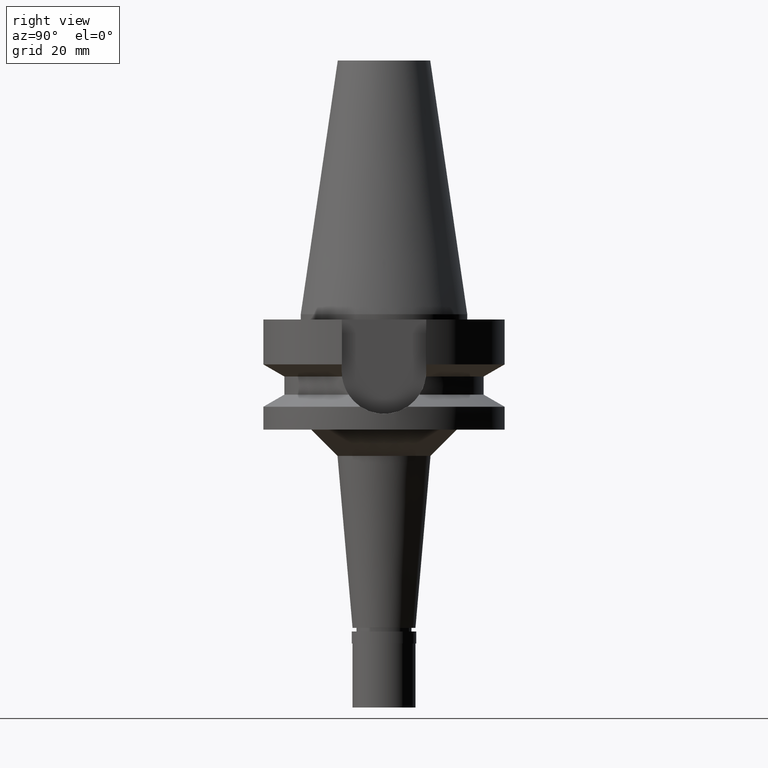
[diagram: clean part render]
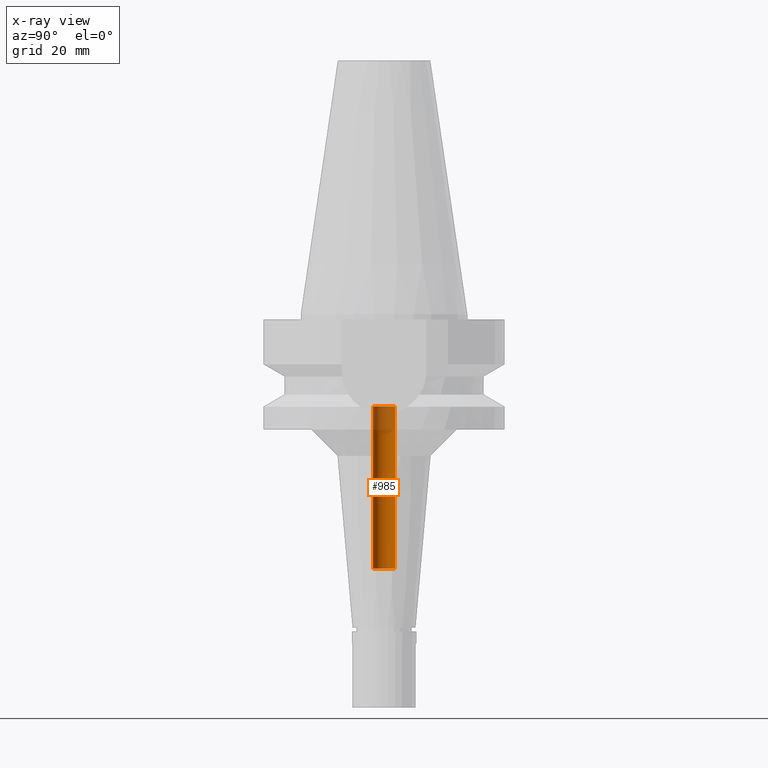
[diagram: x-ray — body ghosted, one internal face saturated and labeled with its STEP entity id]
A machine part, right view, then the same camera in x-ray: the body is ghosted and one INTERNAL B-rep face — a face not visible from any outside direction — is saturated and labeled: STEP entity #985.
In plain terms, the highlighted cylindrical surface (edge-blend (fillet) strip) has radius 2.1 mm, axis along (0, 0, -1).
Its self-contained STEP definition (entity closure, byte-faithful):
#82 = LINE ( 'NONE', #2056, #756 ) ;
#84 = DIRECTION ( 'NONE',  ( 0.0000000000000000000, 0.0000000000000000000, -1.000000000000000000 ) ) ;
#213 = VERTEX_POINT ( 'NONE', #2674 ) ;
#332 = DIRECTION ( 'NONE',  ( 0.0000000000000000000, -1.000000000000000000, 0.0000000000000000000 ) ) ;
#415 = ORIENTED_EDGE ( 'NONE', *, *, #477, .T. ) ;
#477 = EDGE_CURVE ( 'NONE', #2737, #694, #1153, .T. ) ;
#515 = CARTESIAN_POINT ( 'NONE',  ( 0.0000000000000000000, 2.100000000000000089, -17.60000000000000142 ) ) ;
#523 = DIRECTION ( 'NONE',  ( 0.0000000000000000000, 0.0000000000000000000, -1.000000000000000000 ) ) ;
#556 = DIRECTION ( 'NONE',  ( 0.0000000000000000000, -1.000000000000000000, 0.0000000000000000000 ) ) ;
#574 = VECTOR ( 'NONE', #2610, 1000.000000000000000 ) ;
#694 = VERTEX_POINT ( 'NONE', #2174 ) ;
#756 = VECTOR ( 'NONE', #772, 1000.000000000000000 ) ;
#772 = DIRECTION ( 'NONE',  ( 0.0000000000000000000, 0.0000000000000000000, 1.000000000000000000 ) ) ;
#810 = CIRCLE ( 'NONE', #2498, 2.100000000000000089 ) ;
#978 = CARTESIAN_POINT ( 'NONE',  ( 0.0000000000000000000, 1.890487263844000250E-14, 54.37000000000000455 ) ) ;
#985 = ADVANCED_FACE ( 'NONE', ( #1673 ), #1005, .F. ) ;
#991 = EDGE_CURVE ( 'NONE', #2737, #213, #1227, .T. ) ;
#1005 = CYLINDRICAL_SURFACE ( 'NONE', #2710, 2.100000000000000089 ) ;
#1111 = EDGE_CURVE ( 'NONE', #694, #2248, #82, .T. ) ;
#1153 = CIRCLE ( 'NONE', #2355, 2.100000000000000089 ) ;
#1227 = LINE ( 'NONE', #1890, #574 ) ;
#1371 = EDGE_LOOP ( 'NONE', ( #2534, #1627, #415, #1883 ) ) ;
#1542 = CARTESIAN_POINT ( 'NONE',  ( 0.0000000000000000000, -2.100000000000000089, -48.50000000000000000 ) ) ;
#1627 = ORIENTED_EDGE ( 'NONE', *, *, #991, .F. ) ;
#1673 = FACE_OUTER_BOUND ( 'NONE', #1371, .T. ) ;
#1773 = DIRECTION ( 'NONE',  ( 0.0000000000000000000, 1.000000000000000000, 0.0000000000000000000 ) ) ;
#1883 = ORIENTED_EDGE ( 'NONE', *, *, #1111, .T. ) ;
#1890 = CARTESIAN_POINT ( 'NONE',  ( 0.0000000000000000000, -2.100000000000000089, -48.50000000000000000 ) ) ;
#2056 = CARTESIAN_POINT ( 'NONE',  ( 0.0000000000000000000, 2.100000000000000089, -48.50000000000000000 ) ) ;
#2174 = CARTESIAN_POINT ( 'NONE',  ( 0.0000000000000000000, 2.100000000000000089, -48.50000000000000000 ) ) ;
#2189 = CARTESIAN_POINT ( 'NONE',  ( 0.0000000000000000000, 1.890487263844000250E-14, -48.50000000000000000 ) ) ;
#2248 = VERTEX_POINT ( 'NONE', #515 ) ;
#2355 = AXIS2_PLACEMENT_3D ( 'NONE', #2189, #84, #332 ) ;
#2498 = AXIS2_PLACEMENT_3D ( 'NONE', #2874, #2916, #1773 ) ;
#2534 = ORIENTED_EDGE ( 'NONE', *, *, #2782, .T. ) ;
#2610 = DIRECTION ( 'NONE',  ( 0.0000000000000000000, 0.0000000000000000000, 1.000000000000000000 ) ) ;
#2674 = CARTESIAN_POINT ( 'NONE',  ( 0.0000000000000000000, -2.100000000000000089, -17.60000000000000142 ) ) ;
#2710 = AXIS2_PLACEMENT_3D ( 'NONE', #978, #523, #556 ) ;
#2737 = VERTEX_POINT ( 'NONE', #1542 ) ;
#2782 = EDGE_CURVE ( 'NONE', #2248, #213, #810, .T. ) ;
#2874 = CARTESIAN_POINT ( 'NONE',  ( 0.0000000000000000000, 1.890487263844000250E-14, -17.60000000000000142 ) ) ;
#2916 = DIRECTION ( 'NONE',  ( 0.0000000000000000000, 0.0000000000000000000, 1.000000000000000000 ) ) ;